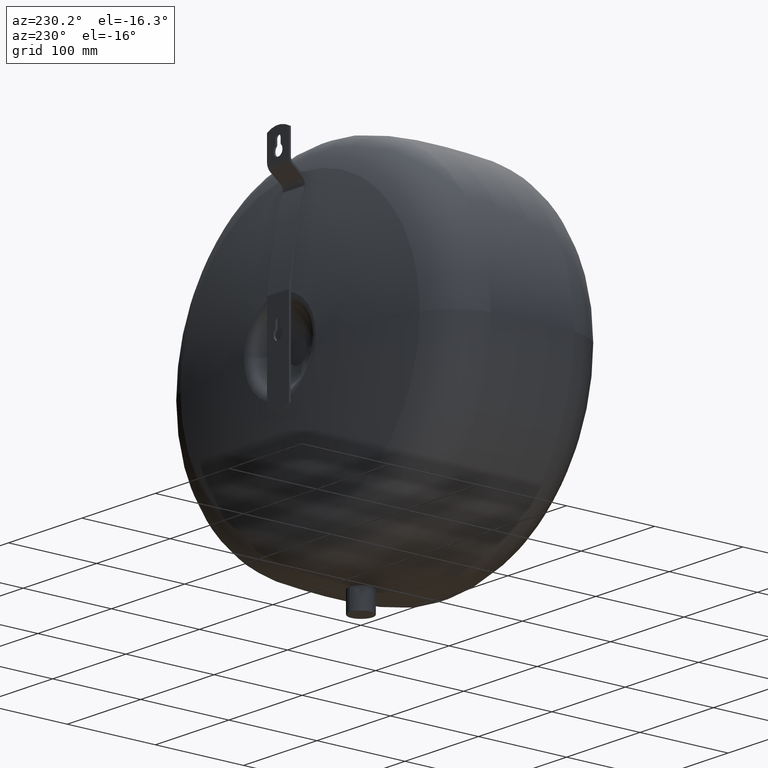
[diagram: clean part render]
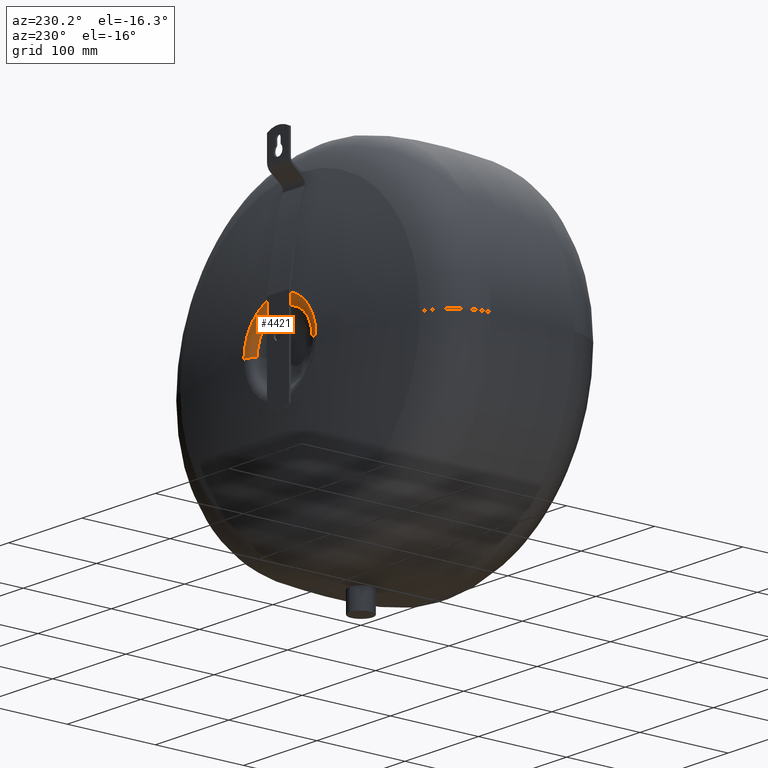
[diagram: same view with one face highlighted and labeled with its STEP entity id]
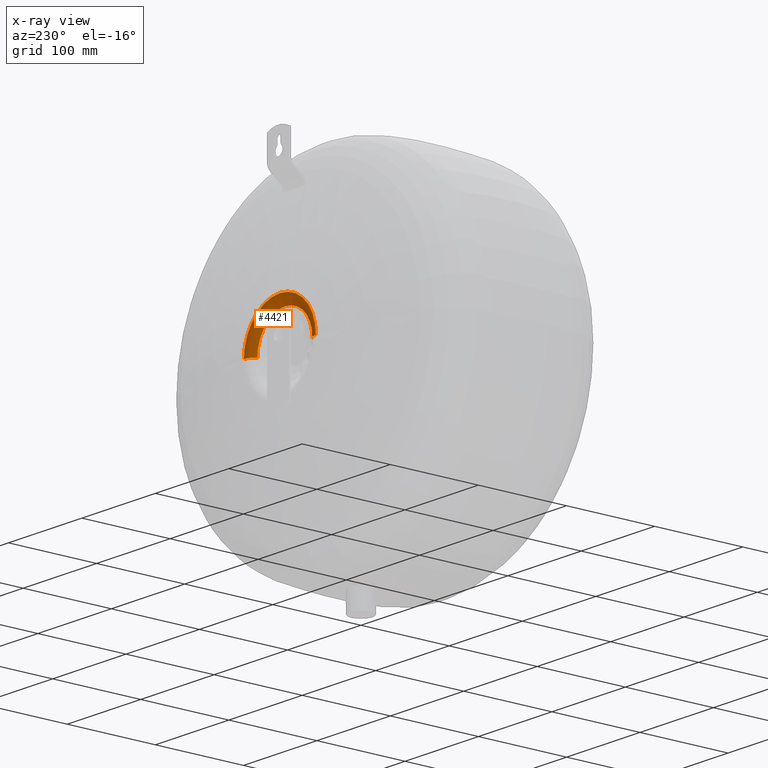
[diagram: x-ray of the same camera — body ghosted, the highlighted face saturated]
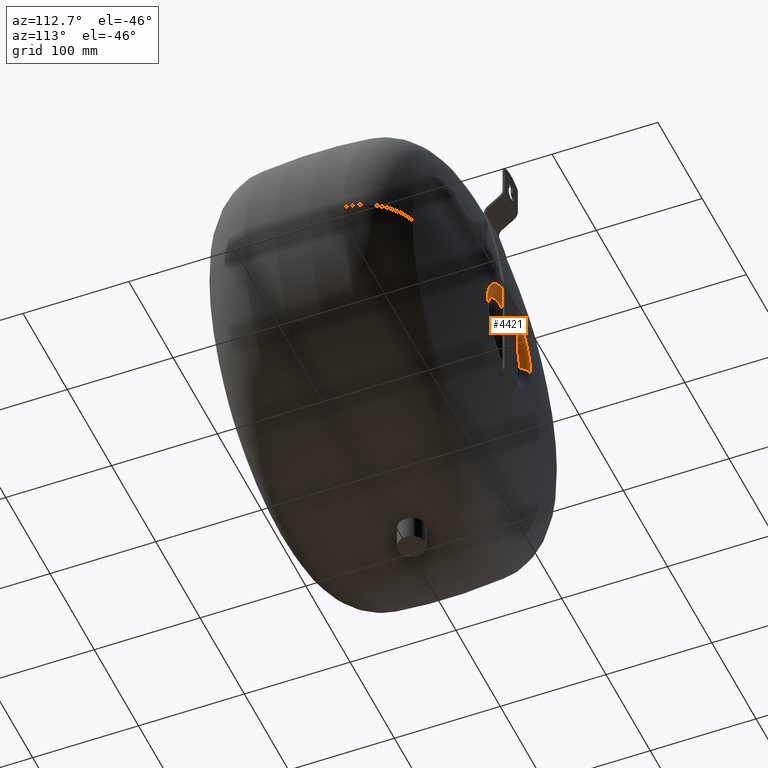
[diagram: same view with one face highlighted and labeled with its STEP entity id]
A machine part, auxiliary view. The second image highlights one B-rep face of the part: STEP entity #4421.
The next image is the same camera in x-ray: the body ghosted, the highlighted face saturated — about 0% of this face is hidden behind the body in this view.
A second angle (auxiliary view) of the same face is appended — the face is thin or edge-on in the first view.
In plain terms, the highlighted toroidal blend (fillet) surface has major radius 48.4009 mm and minor (blend) radius 12 mm.
Its self-contained STEP definition (entity closure, byte-faithful):
#3629=CARTESIAN_POINT('',(49.000000000000028,92.000000000000043,226.00000000000006));
#3630=VERTEX_POINT('',#3629);
#3639=CARTESIAN_POINT('',(-48.999999999999972,92.000000000000071,226.00000000000006));
#3640=VERTEX_POINT('',#3639);
#3663=CARTESIAN_POINT('',(38.000000000000028,86.000000000000057,226.00000000000006));
#3664=VERTEX_POINT('',#3663);
#3665=CARTESIAN_POINT('',(48.400929328224898,80.014962898254439,226.00000000000006));
#3666=DIRECTION('',(0.0,0.0,1.0));
#3667=DIRECTION('',(1.0,0.0,0.0));
#3668=AXIS2_PLACEMENT_3D('',#3665,#3666,#3667);
#3669=CIRCLE('',#3668,12.000000000000002);
#3670=EDGE_CURVE('',#3630,#3664,#3669,.T.);
#3673=CARTESIAN_POINT('',(-37.999999999999972,86.000000000000057,226.00000000000006));
#3674=VERTEX_POINT('',#3673);
#3675=CARTESIAN_POINT('',(-48.400929328224841,80.014962898254467,226.00000000000006));
#3676=DIRECTION('',(0.0,0.0,-1.0));
#3677=DIRECTION('',(-1.0,0.0,0.0));
#3678=AXIS2_PLACEMENT_3D('',#3675,#3676,#3677);
#3679=CIRCLE('',#3678,12.000000000000002);
#3680=EDGE_CURVE('',#3640,#3674,#3679,.T.);
#3761=CARTESIAN_POINT('',(3.196223E-014,86.000000000000057,264.00000000000006));
#3762=VERTEX_POINT('',#3761);
#3763=CARTESIAN_POINT('',(2.963547E-014,86.000000000000057,226.00000000000006));
#3764=DIRECTION('',(0.0,-1.0,0.0));
#3765=DIRECTION('',(0.0,0.0,1.0));
#3766=AXIS2_PLACEMENT_3D('',#3763,#3764,#3765);
#3767=CIRCLE('',#3766,38.0);
#3768=EDGE_CURVE('',#3762,#3674,#3767,.T.);
#3770=CARTESIAN_POINT('',(2.963547E-014,86.000000000000057,226.00000000000006));
#3771=DIRECTION('',(0.0,-1.0,0.0));
#3772=DIRECTION('',(0.0,0.0,1.0));
#3773=AXIS2_PLACEMENT_3D('',#3770,#3771,#3772);
#3774=CIRCLE('',#3773,38.0);
#3775=EDGE_CURVE('',#3664,#3762,#3774,.T.);
#4394=CARTESIAN_POINT('',(2.853608E-014,80.014962898254453,226.00000000000006));
#4395=DIRECTION('',(-1.836910E-016,-1.0,0.0));
#4396=DIRECTION('',(1.0,0.0,0.0));
#4397=AXIS2_PLACEMENT_3D('',#4394,#4395,#4396);
#4398=TOROIDAL_SURFACE('',#4397,48.400929328224869,12.000000000000002);
#4399=ORIENTED_EDGE('',*,*,#3670,.T.);
#4400=ORIENTED_EDGE('',*,*,#3775,.T.);
#4401=ORIENTED_EDGE('',*,*,#3768,.T.);
#4402=ORIENTED_EDGE('',*,*,#3680,.F.);
#4403=CARTESIAN_POINT('',(3.373791E-014,92.000000000000057,275.00000000000006));
#4404=VERTEX_POINT('',#4403);
#4405=CARTESIAN_POINT('',(3.073762E-014,92.000000000000057,226.00000000000006));
#4406=DIRECTION('',(0.0,-1.0,0.0));
#4407=DIRECTION('',(0.0,0.0,1.0));
#4408=AXIS2_PLACEMENT_3D('',#4405,#4406,#4407);
#4409=CIRCLE('',#4408,49.0);
#4410=EDGE_CURVE('',#4404,#3640,#4409,.T.);
#4411=ORIENTED_EDGE('',*,*,#4410,.F.);
#4412=CARTESIAN_POINT('',(3.073762E-014,92.000000000000057,226.00000000000006));
#4413=DIRECTION('',(0.0,-1.0,0.0));
#4414=DIRECTION('',(0.0,0.0,1.0));
#4415=AXIS2_PLACEMENT_3D('',#4412,#4413,#4414);
#4416=CIRCLE('',#4415,49.0);
#4417=EDGE_CURVE('',#3630,#4404,#4416,.T.);
#4418=ORIENTED_EDGE('',*,*,#4417,.F.);
#4419=EDGE_LOOP('',(#4399,#4400,#4401,#4402,#4411,#4418));
#4420=FACE_OUTER_BOUND('',#4419,.T.);
#4421=ADVANCED_FACE('',(#4420),#4398,.T.);